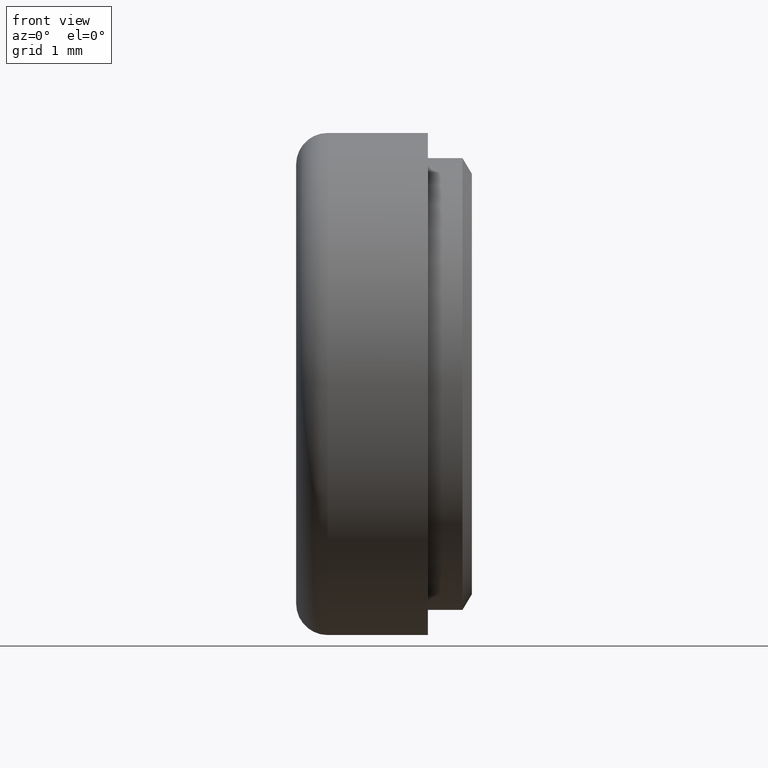
[diagram: clean part render]
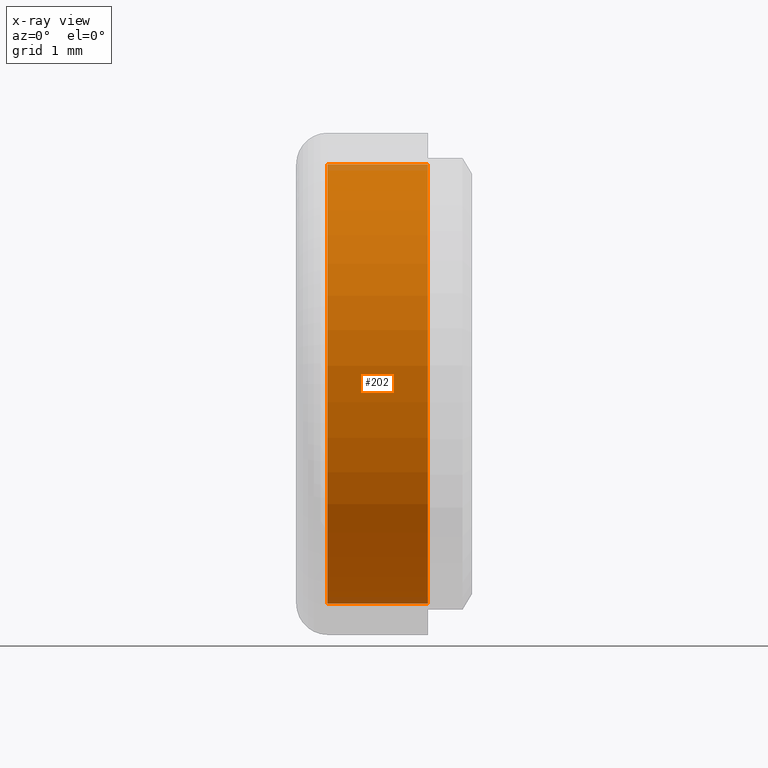
[diagram: x-ray — body ghosted, one internal face saturated and labeled with its STEP entity id]
A machine part, front view, then the same camera in x-ray: the body is ghosted and one INTERNAL B-rep face — a face not visible from any outside direction — is saturated and labeled: STEP entity #202.
In plain terms, the highlighted cylindrical surface (partial cylindrical patch) has radius 3.5 mm, axis along (-1, -0, -0).
Its self-contained STEP definition (entity closure, byte-faithful):
#43 = VERTEX_POINT ( 'NONE', #144 ) ;
#64 = VERTEX_POINT ( 'NONE', #654 ) ;
#73 = VERTEX_POINT ( 'NONE', #238 ) ;
#83 = CARTESIAN_POINT ( 'NONE',  ( -88.98999999999999500, 0.0000000000000000000, 3.499999999999999600 ) ) ;
#92 = EDGE_CURVE ( 'NONE', #64, #43, #310, .T. ) ;
#101 = FACE_OUTER_BOUND ( 'NONE', #483, .T. ) ;
#106 = CIRCLE ( 'NONE', #141, 3.499999999999999600 ) ;
#123 = DIRECTION ( 'NONE',  ( -1.000000000000000000, -0.0000000000000000000, -0.0000000000000000000 ) ) ;
#141 = AXIS2_PLACEMENT_3D ( 'NONE', #439, #276, #319 ) ;
#144 = CARTESIAN_POINT ( 'NONE',  ( 1.600000000000004100, 0.0000000000000000000, 3.499999999999999100 ) ) ;
#152 = VECTOR ( 'NONE', #123, 1000.000000000000000 ) ;
#157 = LINE ( 'NONE', #612, #152 ) ;
#164 = VERTEX_POINT ( 'NONE', #469 ) ;
#180 = DIRECTION ( 'NONE',  ( -1.000000000000000000, -0.0000000000000000000, -0.0000000000000000000 ) ) ;
#202 = ADVANCED_FACE ( 'NONE', ( #101 ), #582, .T. ) ;
#238 = CARTESIAN_POINT ( 'NONE',  ( 0.0000000000000000000, 4.286263797015736100E-016, -3.499999999999999600 ) ) ;
#274 = EDGE_CURVE ( 'NONE', #64, #73, #157, .T. ) ;
#276 = DIRECTION ( 'NONE',  ( -1.000000000000000000, -0.0000000000000000000, -0.0000000000000000000 ) ) ;
#278 = DIRECTION ( 'NONE',  ( -1.000000000000000000, -0.0000000000000000000, -0.0000000000000000000 ) ) ;
#310 = CIRCLE ( 'NONE', #419, 3.499999999999999100 ) ;
#313 = VECTOR ( 'NONE', #278, 1000.000000000000000 ) ;
#319 = DIRECTION ( 'NONE',  ( 0.0000000000000000000, 0.0000000000000000000, 1.000000000000000000 ) ) ;
#338 = ORIENTED_EDGE ( 'NONE', *, *, #274, .F. ) ;
#365 = DIRECTION ( 'NONE',  ( 0.0000000000000000000, 0.0000000000000000000, 1.000000000000000000 ) ) ;
#419 = AXIS2_PLACEMENT_3D ( 'NONE', #703, #631, #365 ) ;
#439 = CARTESIAN_POINT ( 'NONE',  ( 0.0000000000000000000, 0.0000000000000000000, 0.0000000000000000000 ) ) ;
#462 = LINE ( 'NONE', #83, #313 ) ;
#468 = ORIENTED_EDGE ( 'NONE', *, *, #92, .T. ) ;
#469 = CARTESIAN_POINT ( 'NONE',  ( 0.0000000000000000000, 0.0000000000000000000, 3.499999999999999600 ) ) ;
#483 = EDGE_LOOP ( 'NONE', ( #338, #468, #604, #616 ) ) ;
#509 = EDGE_CURVE ( 'NONE', #43, #164, #462, .T. ) ;
#570 = AXIS2_PLACEMENT_3D ( 'NONE', #639, #180, #674 ) ;
#582 = CYLINDRICAL_SURFACE ( 'NONE', #570, 3.499999999999999600 ) ;
#604 = ORIENTED_EDGE ( 'NONE', *, *, #509, .T. ) ;
#612 = CARTESIAN_POINT ( 'NONE',  ( -88.98999999999999500, 4.286263797015736100E-016, -3.499999999999999600 ) ) ;
#616 = ORIENTED_EDGE ( 'NONE', *, *, #650, .F. ) ;
#631 = DIRECTION ( 'NONE',  ( -1.000000000000000000, -0.0000000000000000000, -0.0000000000000000000 ) ) ;
#639 = CARTESIAN_POINT ( 'NONE',  ( -88.98999999999999500, 0.0000000000000000000, 0.0000000000000000000 ) ) ;
#650 = EDGE_CURVE ( 'NONE', #73, #164, #106, .T. ) ;
#654 = CARTESIAN_POINT ( 'NONE',  ( 1.600000000000004100, 4.286263797015735600E-016, -3.499999999999999100 ) ) ;
#674 = DIRECTION ( 'NONE',  ( 0.0000000000000000000, 0.0000000000000000000, 1.000000000000000000 ) ) ;
#703 = CARTESIAN_POINT ( 'NONE',  ( 1.600000000000004100, 0.0000000000000000000, 0.0000000000000000000 ) ) ;